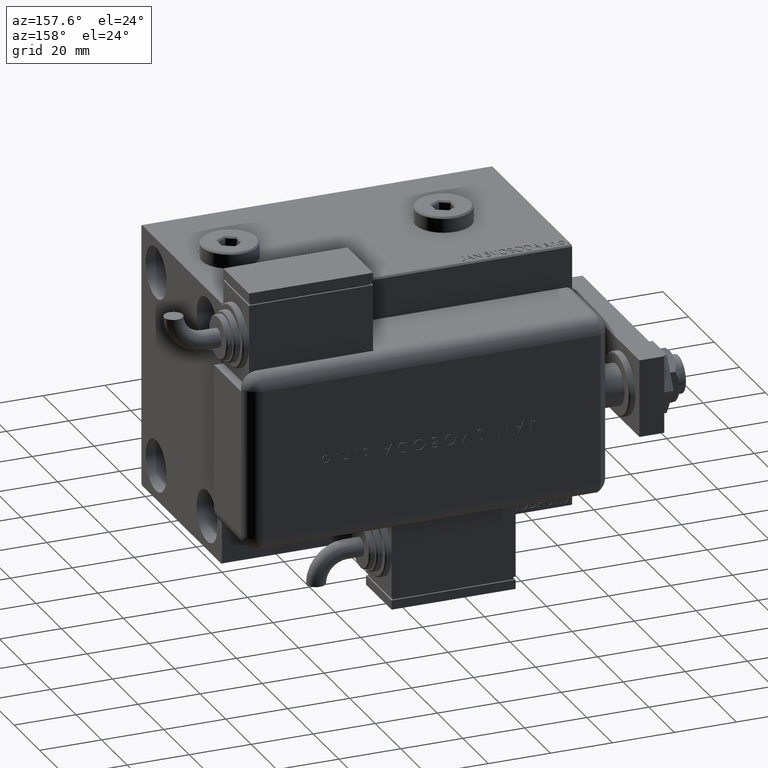
[diagram: clean part render]
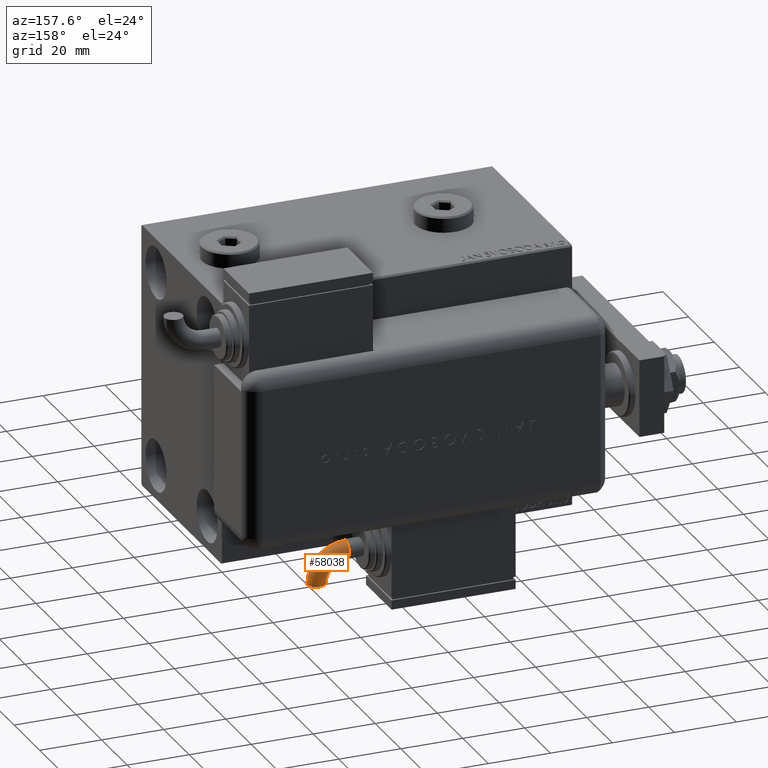
[diagram: same view with one face highlighted and labeled with its STEP entity id]
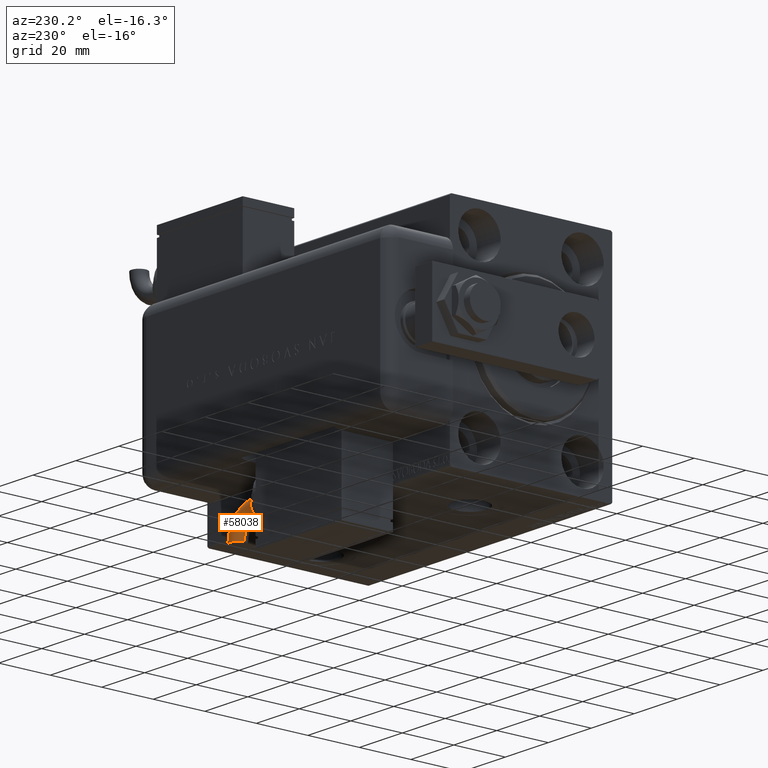
[diagram: same view with one face highlighted and labeled with its STEP entity id]
A machine part, auxiliary view. The second image highlights one B-rep face of the part: STEP entity #58038.
A second angle (auxiliary view) of the same face is appended — the face is thin or edge-on in the first view.
In plain terms, the highlighted toroidal blend (fillet) surface has major radius 9.5072 mm and minor (blend) radius 3 mm.
Its self-contained STEP definition (entity closure, byte-faithful):
#1419 = DIRECTION ( 'NONE',  ( 1.000000000000000000, 1.025520576932673761E-15, 0.000000000000000000 ) ) ;
#1473 = CARTESIAN_POINT ( 'NONE',  ( -30.75201677704342274, 2.081668171172168829E-14, 2.999999999999997335 ) ) ;
#1998 = CARTESIAN_POINT ( 'NONE',  ( -30.75201677704342274, 2.081668171172168513E-14, 0.000000000000000000 ) ) ;
#2612 = DIRECTION ( 'NONE',  ( 1.000000000000000000, 0.000000000000000000, 0.000000000000000000 ) ) ;
#3012 = CARTESIAN_POINT ( 'NONE',  ( -30.75201677704342629, 3.000000000000017319, 0.000000000000000000 ) ) ;
#7041 = AXIS2_PLACEMENT_3D ( 'NONE', #10497, #11113, #28701 ) ;
#7230 = DIRECTION ( 'NONE',  ( -1.156482317317872908E-15, 1.000000000000000000, 0.000000000000000000 ) ) ;
#8495 = ORIENTED_EDGE ( 'NONE', *, *, #57023, .F. ) ;
#9712 = ORIENTED_EDGE ( 'NONE', *, *, #30112, .F. ) ;
#10497 = CARTESIAN_POINT ( 'NONE',  ( -30.75201677704342274, -9.507211519273942812, 0.000000000000000000 ) ) ;
#10660 = CARTESIAN_POINT ( 'NONE',  ( -30.75201677704342274, 2.081668171172168513E-14, 0.000000000000000000 ) ) ;
#11113 = DIRECTION ( 'NONE',  ( 0.000000000000000000, 0.000000000000000000, 1.000000000000000000 ) ) ;
#11804 = VERTEX_POINT ( 'NONE', #22196 ) ;
#12753 = DIRECTION ( 'NONE',  ( -7.402363701065945741E-06, 0.9999999999726024713, 0.000000000000000000 ) ) ;
#14127 = AXIS2_PLACEMENT_3D ( 'NONE', #1998, #30973, #7230 ) ;
#15090 = ORIENTED_EDGE ( 'NONE', *, *, #37464, .T. ) ;
#16548 = CARTESIAN_POINT ( 'NONE',  ( -30.75201677704342274, -9.507211519273942812, -3.673940397442055924E-16 ) ) ;
#18001 = CIRCLE ( 'NONE', #32741, 2.999999999999996003 ) ;
#21130 = CIRCLE ( 'NONE', #52643, 6.507211519273966793 ) ;
#22196 = CARTESIAN_POINT ( 'NONE',  ( -43.25922829597471519, -9.507304102202486007, 0.000000000000000000 ) ) ;
#22322 = CARTESIAN_POINT ( 'NONE',  ( -40.25922829605691078, -9.507281895111381331, 0.000000000000000000 ) ) ;
#23028 = AXIS2_PLACEMENT_3D ( 'NONE', #22322, #12753, #40186 ) ;
#23147 = ORIENTED_EDGE ( 'NONE', *, *, #55104, .F. ) ;
#26350 = DIRECTION ( 'NONE',  ( 0.000000000000000000, 0.000000000000000000, 1.000000000000000000 ) ) ;
#28701 = DIRECTION ( 'NONE',  ( 1.000000000000000000, 0.000000000000000000, 0.000000000000000000 ) ) ;
#29148 = CARTESIAN_POINT ( 'NONE',  ( -30.75201677704342274, -9.507211519273942812, 0.000000000000000000 ) ) ;
#30112 = EDGE_CURVE ( 'NONE', #51395, #53419, #18001, .T. ) ;
#30973 = DIRECTION ( 'NONE',  ( 1.000000000000000000, 1.025520576932673761E-15, 0.000000000000000000 ) ) ;
#32741 = AXIS2_PLACEMENT_3D ( 'NONE', #10660, #1419, #47982 ) ;
#34211 = CARTESIAN_POINT ( 'NONE',  ( -37.25922829613910636, -9.507259688020280208, -3.673940397551225891E-16 ) ) ;
#36175 = VERTEX_POINT ( 'NONE', #48305 ) ;
#37464 = EDGE_CURVE ( 'NONE', #11804, #54419, #49650, .T. ) ;
#39065 = DIRECTION ( 'NONE',  ( 1.000000000000000000, 0.000000000000000000, 0.000000000000000000 ) ) ;
#40186 = DIRECTION ( 'NONE',  ( -0.9999999999726024713, -7.402363701169985951E-06, 0.000000000000000000 ) ) ;
#40791 = EDGE_LOOP ( 'NONE', ( #9712, #56996, #15090, #8495, #23147 ) ) ;
#41694 = CIRCLE ( 'NONE', #14127, 2.999999999999996003 ) ;
#41831 = AXIS2_PLACEMENT_3D ( 'NONE', #29148, #26350, #2612 ) ;
#43616 = FACE_OUTER_BOUND ( 'NONE', #40791, .T. ) ;
#46798 = EDGE_CURVE ( 'NONE', #51395, #11804, #60221, .T. ) ;
#47703 = TOROIDAL_SURFACE ( 'NONE', #41831, 9.507211519273964129, 2.999999999999996891 ) ;
#47982 = DIRECTION ( 'NONE',  ( -1.156482317317872908E-15, 1.000000000000000000, 0.000000000000000000 ) ) ;
#48305 = CARTESIAN_POINT ( 'NONE',  ( -30.75201677704341918, -2.999999999999976463, -3.673940397442056910E-16 ) ) ;
#49650 = CIRCLE ( 'NONE', #23028, 2.999999999999996891 ) ;
#51395 = VERTEX_POINT ( 'NONE', #3012 ) ;
#52643 = AXIS2_PLACEMENT_3D ( 'NONE', #16548, #54173, #39065 ) ;
#53419 = VERTEX_POINT ( 'NONE', #1473 ) ;
#54173 = DIRECTION ( 'NONE',  ( 0.000000000000000000, 0.000000000000000000, 1.000000000000000000 ) ) ;
#54419 = VERTEX_POINT ( 'NONE', #34211 ) ;
#55104 = EDGE_CURVE ( 'NONE', #53419, #36175, #41694, .T. ) ;
#56996 = ORIENTED_EDGE ( 'NONE', *, *, #46798, .T. ) ;
#57023 = EDGE_CURVE ( 'NONE', #36175, #54419, #21130, .T. ) ;
#58038 = ADVANCED_FACE ( 'NONE', ( #43616 ), #47703, .T. ) ;
#60221 = CIRCLE ( 'NONE', #7041, 12.50721151927396058 ) ;